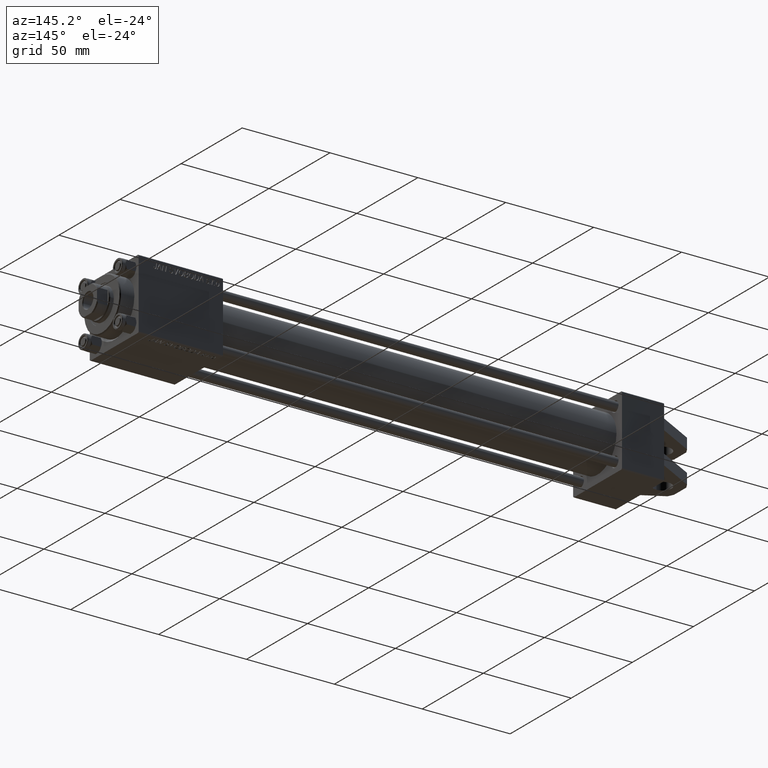
[diagram: clean part render]
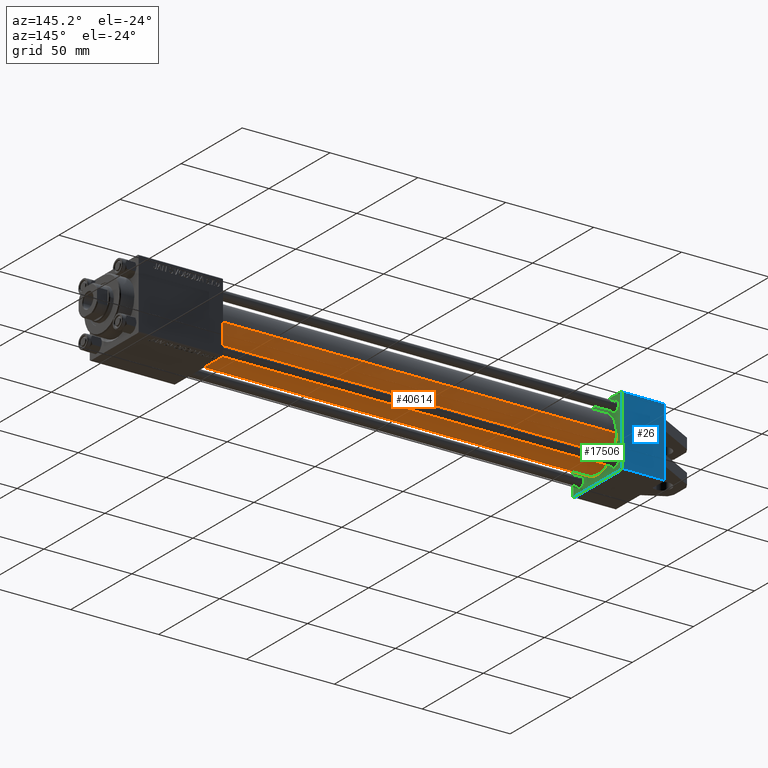
[diagram: same view with three faces highlighted in distinct colors, each labeled with its STEP entity id]
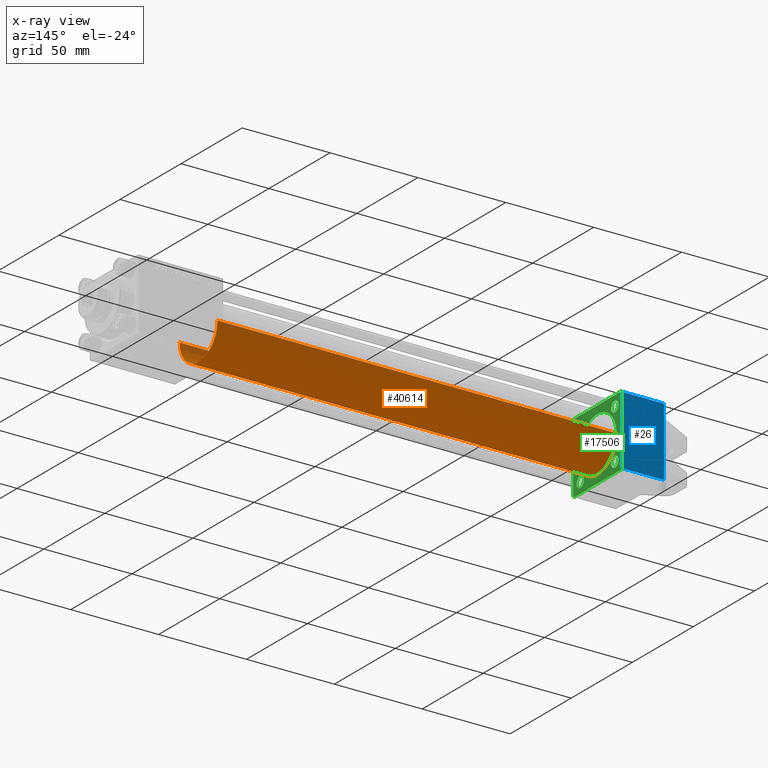
[diagram: x-ray of the same camera — body ghosted, the three highlighted faces saturated]
A machine part, auxiliary view with three faces highlighted in distinct colors.
The next image is the same camera in x-ray (body ghosted, the three faces saturated) — at least one of them is partly hidden behind the body in this view.
Their STEP definitions:

[orange] entity #40614 — the highlighted cylindrical surface (edge-blend (fillet) strip) has radius 15.5 mm, axis along (-1, -0, 0).
#1035 = CARTESIAN_POINT ( 'NONE',  ( 251.0000000000000000, -3.469446951953614189E-15, 15.50000000000000000 ) ) ;
#2471 = AXIS2_PLACEMENT_3D ( 'NONE', #43140, #35383, #30864 ) ;
#2531 = EDGE_CURVE ( 'NONE', #3615, #30677, #5265, .T. ) ;
#3615 = VERTEX_POINT ( 'NONE', #13253 ) ;
#4695 = AXIS2_PLACEMENT_3D ( 'NONE', #20181, #15919, #39510 ) ;
#5265 = LINE ( 'NONE', #1035, #26088 ) ;
#6732 = EDGE_LOOP ( 'NONE', ( #21698, #48359, #8610, #7876 ) ) ;
#6748 = CARTESIAN_POINT ( 'NONE',  ( 251.0000000000000000, -1.571244413275217026E-15, -15.50000000000000000 ) ) ;
#7876 = ORIENTED_EDGE ( 'NONE', *, *, #2531, .F. ) ;
#8141 = FACE_OUTER_BOUND ( 'NONE', #6732, .T. ) ;
#8610 = ORIENTED_EDGE ( 'NONE', *, *, #22761, .T. ) ;
#10566 = DIRECTION ( 'NONE',  ( -1.000000000000000000, -0.000000000000000000, -0.000000000000000000 ) ) ;
#13253 = CARTESIAN_POINT ( 'NONE',  ( 251.0000000000000000, -3.469446951953614189E-15, 15.50000000000000000 ) ) ;
#15919 = DIRECTION ( 'NONE',  ( -1.000000000000000000, -0.000000000000000000, -0.000000000000000000 ) ) ;
#17245 = VERTEX_POINT ( 'NONE', #6748 ) ;
#19935 = EDGE_CURVE ( 'NONE', #17245, #3615, #31292, .T. ) ;
#20181 = CARTESIAN_POINT ( 'NONE',  ( 251.0000000000000000, -3.469446951953614189E-15, 0.000000000000000000 ) ) ;
#21015 = DIRECTION ( 'NONE',  ( 1.000000000000000000, 0.000000000000000000, 0.000000000000000000 ) ) ;
#21698 = ORIENTED_EDGE ( 'NONE', *, *, #19935, .F. ) ;
#22591 = CARTESIAN_POINT ( 'NONE',  ( 251.0000000000000000, -1.571244413275217026E-15, -15.50000000000000000 ) ) ;
#22761 = EDGE_CURVE ( 'NONE', #49135, #30677, #36211, .T. ) ;
#26088 = VECTOR ( 'NONE', #46677, 1000.000000000000000 ) ;
#26361 = LINE ( 'NONE', #22591, #35698 ) ;
#29049 = DIRECTION ( 'NONE',  ( 0.000000000000000000, 0.000000000000000000, 1.000000000000000000 ) ) ;
#29778 = CARTESIAN_POINT ( 'NONE',  ( 23.99999999999999289, -3.469446951953614189E-15, 0.000000000000000000 ) ) ;
#30677 = VERTEX_POINT ( 'NONE', #38389 ) ;
#30864 = DIRECTION ( 'NONE',  ( 0.000000000000000000, 0.000000000000000000, -1.000000000000000000 ) ) ;
#31292 = CIRCLE ( 'NONE', #2471, 15.50000000000000000 ) ;
#35383 = DIRECTION ( 'NONE',  ( 1.000000000000000000, 0.000000000000000000, 0.000000000000000000 ) ) ;
#35698 = VECTOR ( 'NONE', #10566, 1000.000000000000000 ) ;
#36211 = CIRCLE ( 'NONE', #37030, 15.50000000000000000 ) ;
#36324 = EDGE_CURVE ( 'NONE', #17245, #49135, #26361, .T. ) ;
#37030 = AXIS2_PLACEMENT_3D ( 'NONE', #29778, #21015, #29049 ) ;
#38389 = CARTESIAN_POINT ( 'NONE',  ( 23.99999999999999289, -3.469446951953614189E-15, 15.50000000000000000 ) ) ;
#38769 = CYLINDRICAL_SURFACE ( 'NONE', #4695, 15.50000000000000000 ) ;
#39510 = DIRECTION ( 'NONE',  ( 0.000000000000000000, 0.000000000000000000, 1.000000000000000000 ) ) ;
#40614 = ADVANCED_FACE ( 'NONE', ( #8141 ), #38769, .T. ) ;
#43140 = CARTESIAN_POINT ( 'NONE',  ( 251.0000000000000000, -3.469446951953614189E-15, 0.000000000000000000 ) ) ;
#45581 = CARTESIAN_POINT ( 'NONE',  ( 23.99999999999999289, -1.571244413275217026E-15, -15.50000000000000000 ) ) ;
#46677 = DIRECTION ( 'NONE',  ( -1.000000000000000000, -0.000000000000000000, -0.000000000000000000 ) ) ;
#48359 = ORIENTED_EDGE ( 'NONE', *, *, #36324, .T. ) ;
#49135 = VERTEX_POINT ( 'NONE', #45581 ) ;

[blue] entity #26 — the highlighted planar face has unit normal (0, -1, -0).
#26 = ADVANCED_FACE ( 'NONE', ( #1017 ), #34361, .F. ) ;
#484 = LINE ( 'NONE', #31074, #48434 ) ;
#1017 = FACE_OUTER_BOUND ( 'NONE', #4135, .T. ) ;
#2263 = CARTESIAN_POINT ( 'NONE',  ( 24.00000000000000000, -19.49999999999999289, 19.99999999999998934 ) ) ;
#3327 = ORIENTED_EDGE ( 'NONE', *, *, #35187, .T. ) ;
#3594 = VECTOR ( 'NONE', #39533, 1000.000000000000000 ) ;
#3760 = DIRECTION ( 'NONE',  ( 0.000000000000000000, 2.602085213965210149E-16, -1.000000000000000000 ) ) ;
#4135 = EDGE_LOOP ( 'NONE', ( #3327, #46957, #36189, #30923, #49245, #25771, #46294, #37423 ) ) ;
#5000 = CARTESIAN_POINT ( 'NONE',  ( 0.000000000000000000, 6.000000000000000000, 19.99999999999999645 ) ) ;
#5658 = CARTESIAN_POINT ( 'NONE',  ( 0.000000000000000000, -6.000000000000000000, 19.99999999999998934 ) ) ;
#5775 = DIRECTION ( 'NONE',  ( -0.000000000000000000, -1.000000000000000000, -0.000000000000000000 ) ) ;
#6247 = DIRECTION ( 'NONE',  ( 1.000000000000000000, 0.000000000000000000, 0.000000000000000000 ) ) ;
#6880 = VERTEX_POINT ( 'NONE', #5658 ) ;
#8243 = CARTESIAN_POINT ( 'NONE',  ( 24.00000000000000000, 20.00000000000000000, 20.00000000000000000 ) ) ;
#8430 = VERTEX_POINT ( 'NONE', #40404 ) ;
#12256 = DIRECTION ( 'NONE',  ( 0.000000000000000000, 1.000000000000000000, 2.602085213965210149E-16 ) ) ;
#12447 = VERTEX_POINT ( 'NONE', #34679 ) ;
#13215 = VECTOR ( 'NONE', #22775, 1000.000000000000000 ) ;
#14660 = VERTEX_POINT ( 'NONE', #29392 ) ;
#15517 = CARTESIAN_POINT ( 'NONE',  ( 0.000000000000000000, 19.50000000000000000, 20.00000000000000000 ) ) ;
#17153 = EDGE_CURVE ( 'NONE', #12447, #21590, #36401, .T. ) ;
#17366 = CARTESIAN_POINT ( 'NONE',  ( 0.000000000000000000, -12.00000000000000000, 19.99999999999998934 ) ) ;
#19958 = VECTOR ( 'NONE', #6247, 1000.000000000000000 ) ;
#20002 = VECTOR ( 'NONE', #5775, 1000.000000000000000 ) ;
#20697 = CARTESIAN_POINT ( 'NONE',  ( 0.000000000000000000, 20.00000000000000000, 20.00000000000000000 ) ) ;
#21191 = CARTESIAN_POINT ( 'NONE',  ( 24.00000000000000000, 19.50000000000000000, 20.00000000000000000 ) ) ;
#21590 = VERTEX_POINT ( 'NONE', #47241 ) ;
#22775 = DIRECTION ( 'NONE',  ( 0.000000000000000000, -1.000000000000000000, -2.602085213965210149E-16 ) ) ;
#23626 = AXIS2_PLACEMENT_3D ( 'NONE', #8243, #3760, #12256 ) ;
#23746 = VERTEX_POINT ( 'NONE', #5000 ) ;
#23770 = DIRECTION ( 'NONE',  ( 0.000000000000000000, -1.000000000000000000, -2.602085213965210149E-16 ) ) ;
#24595 = CARTESIAN_POINT ( 'NONE',  ( 0.000000000000000000, 20.00000000000000000, 20.00000000000000000 ) ) ;
#24654 = LINE ( 'NONE', #17366, #49105 ) ;
#25771 = ORIENTED_EDGE ( 'NONE', *, *, #42736, .T. ) ;
#26805 = CARTESIAN_POINT ( 'NONE',  ( 0.000000000000000000, 20.00000000000000000, 20.00000000000000000 ) ) ;
#27361 = EDGE_CURVE ( 'NONE', #12447, #6880, #24654, .T. ) ;
#28592 = LINE ( 'NONE', #2263, #19958 ) ;
#28755 = VERTEX_POINT ( 'NONE', #31319 ) ;
#28928 = DIRECTION ( 'NONE',  ( -0.000000000000000000, 1.000000000000000000, -0.000000000000000000 ) ) ;
#29351 = LINE ( 'NONE', #26805, #13215 ) ;
#29392 = CARTESIAN_POINT ( 'NONE',  ( 0.000000000000000000, 12.00000000000000000, 19.99999999999999645 ) ) ;
#29813 = EDGE_CURVE ( 'NONE', #49611, #8430, #484, .T. ) ;
#30923 = ORIENTED_EDGE ( 'NONE', *, *, #27361, .F. ) ;
#31074 = CARTESIAN_POINT ( 'NONE',  ( 24.00000000000000000, 20.00000000000000000, 20.00000000000000000 ) ) ;
#31319 = CARTESIAN_POINT ( 'NONE',  ( 0.000000000000000000, 19.50000000000000000, 20.00000000000000000 ) ) ;
#31352 = DIRECTION ( 'NONE',  ( -1.000000000000000000, 0.000000000000000000, 0.000000000000000000 ) ) ;
#32389 = DIRECTION ( 'NONE',  ( 0.000000000000000000, -1.000000000000000000, -2.602085213965210149E-16 ) ) ;
#33864 = LINE ( 'NONE', #15517, #35246 ) ;
#34361 = PLANE ( 'NONE',  #23626 ) ;
#34679 = CARTESIAN_POINT ( 'NONE',  ( 0.000000000000000000, -12.00000000000000000, 19.99999999999999289 ) ) ;
#34683 = EDGE_CURVE ( 'NONE', #23746, #6880, #29351, .T. ) ;
#35187 = EDGE_CURVE ( 'NONE', #28755, #14660, #40287, .T. ) ;
#35246 = VECTOR ( 'NONE', #31352, 1000.000000000000000 ) ;
#36189 = ORIENTED_EDGE ( 'NONE', *, *, #34683, .T. ) ;
#36401 = LINE ( 'NONE', #24595, #46554 ) ;
#37423 = ORIENTED_EDGE ( 'NONE', *, *, #44704, .T. ) ;
#39533 = DIRECTION ( 'NONE',  ( 0.000000000000000000, -1.000000000000000000, -2.602085213965210149E-16 ) ) ;
#40148 = LINE ( 'NONE', #40387, #20002 ) ;
#40287 = LINE ( 'NONE', #20697, #3594 ) ;
#40387 = CARTESIAN_POINT ( 'NONE',  ( 0.000000000000000000, 12.00000000000000000, 19.99999999999998934 ) ) ;
#40404 = CARTESIAN_POINT ( 'NONE',  ( 24.00000000000000000, -19.49999999999999289, 19.99999999999998934 ) ) ;
#42736 = EDGE_CURVE ( 'NONE', #21590, #8430, #28592, .T. ) ;
#43741 = EDGE_CURVE ( 'NONE', #14660, #23746, #40148, .T. ) ;
#44704 = EDGE_CURVE ( 'NONE', #49611, #28755, #33864, .T. ) ;
#46294 = ORIENTED_EDGE ( 'NONE', *, *, #29813, .F. ) ;
#46554 = VECTOR ( 'NONE', #32389, 1000.000000000000000 ) ;
#46957 = ORIENTED_EDGE ( 'NONE', *, *, #43741, .T. ) ;
#47241 = CARTESIAN_POINT ( 'NONE',  ( 0.000000000000000000, -19.49999999999999289, 19.99999999999998934 ) ) ;
#48434 = VECTOR ( 'NONE', #23770, 1000.000000000000000 ) ;
#49105 = VECTOR ( 'NONE', #28928, 1000.000000000000000 ) ;
#49245 = ORIENTED_EDGE ( 'NONE', *, *, #17153, .T. ) ;
#49611 = VERTEX_POINT ( 'NONE', #21191 ) ;

[green] entity #17506 — the highlighted planar face has unit normal (-1, 0, -0).
#467 = ORIENTED_EDGE ( 'NONE', *, *, #31395, .T. ) ;
#483 = EDGE_CURVE ( 'NONE', #22000, #46213, #39693, .T. ) ;
#484 = LINE ( 'NONE', #31074, #48434 ) ;
#829 = ORIENTED_EDGE ( 'NONE', *, *, #39392, .T. ) ;
#2100 = VERTEX_POINT ( 'NONE', #16112 ) ;
#2825 = CARTESIAN_POINT ( 'NONE',  ( 24.00000000000000000, -14.14999999999999503, -17.15000000000000213 ) ) ;
#2859 = DIRECTION ( 'NONE',  ( 0.000000000000000000, 0.000000000000000000, 1.000000000000000000 ) ) ;
#3087 = CARTESIAN_POINT ( 'NONE',  ( 24.00000000000000000, 14.14999999999999858, 14.15000000000000036 ) ) ;
#3199 = FACE_BOUND ( 'NONE', #32418, .T. ) ;
#3511 = EDGE_CURVE ( 'NONE', #21528, #2100, #24420, .T. ) ;
#3841 = ORIENTED_EDGE ( 'NONE', *, *, #44250, .F. ) ;
#4323 = EDGE_CURVE ( 'NONE', #28096, #17785, #22779, .T. ) ;
#4855 = ORIENTED_EDGE ( 'NONE', *, *, #4960, .F. ) ;
#4960 = EDGE_CURVE ( 'NONE', #32857, #37855, #43030, .T. ) ;
#5140 = VECTOR ( 'NONE', #46726, 1000.000000000000114 ) ;
#5302 = DIRECTION ( 'NONE',  ( 0.000000000000000000, 0.000000000000000000, 1.000000000000000000 ) ) ;
#5553 = ORIENTED_EDGE ( 'NONE', *, *, #28811, .F. ) ;
#6134 = ORIENTED_EDGE ( 'NONE', *, *, #22761, .F. ) ;
#6213 = FACE_BOUND ( 'NONE', #10376, .T. ) ;
#6583 = ORIENTED_EDGE ( 'NONE', *, *, #483, .T. ) ;
#7116 = VERTEX_POINT ( 'NONE', #8594 ) ;
#7164 = ORIENTED_EDGE ( 'NONE', *, *, #28046, .T. ) ;
#7175 = DIRECTION ( 'NONE',  ( -1.000000000000000000, 0.000000000000000000, -0.000000000000000000 ) ) ;
#7991 = DIRECTION ( 'NONE',  ( -1.000000000000000000, -0.000000000000000000, -0.000000000000000000 ) ) ;
#8209 = LINE ( 'NONE', #23514, #16329 ) ;
#8430 = VERTEX_POINT ( 'NONE', #40404 ) ;
#8453 = DIRECTION ( 'NONE',  ( -1.000000000000000000, -0.000000000000000000, -0.000000000000000000 ) ) ;
#8594 = CARTESIAN_POINT ( 'NONE',  ( 24.00000000000000000, 19.50000000000000711, -20.00000000000000711 ) ) ;
#8629 = ORIENTED_EDGE ( 'NONE', *, *, #23520, .T. ) ;
#8867 = DIRECTION ( 'NONE',  ( 1.000000000000000000, 0.000000000000000000, 0.000000000000000000 ) ) ;
#9199 = VECTOR ( 'NONE', #18535, 1000.000000000000000 ) ;
#9378 = DIRECTION ( 'NONE',  ( 0.000000000000000000, 0.000000000000000000, 1.000000000000000000 ) ) ;
#9874 = DIRECTION ( 'NONE',  ( -1.000000000000000000, -0.000000000000000000, -0.000000000000000000 ) ) ;
#9938 = CARTESIAN_POINT ( 'NONE',  ( 24.00000000000000000, -20.00000000000000000, -19.49999999999999645 ) ) ;
#10376 = EDGE_LOOP ( 'NONE', ( #29464, #47553 ) ) ;
#10639 = VERTEX_POINT ( 'NONE', #30343 ) ;
#10821 = VECTOR ( 'NONE', #12905, 1000.000000000000000 ) ;
#11264 = VECTOR ( 'NONE', #48637, 999.9999999999998863 ) ;
#11810 = ORIENTED_EDGE ( 'NONE', *, *, #20464, .T. ) ;
#12001 = CIRCLE ( 'NONE', #16022, 15.50000000000000000 ) ;
#12062 = AXIS2_PLACEMENT_3D ( 'NONE', #47292, #9874, #9378 ) ;
#12515 = EDGE_CURVE ( 'NONE', #2100, #21528, #19949, .T. ) ;
#12905 = DIRECTION ( 'NONE',  ( 0.000000000000000000, 0.000000000000000000, -1.000000000000000000 ) ) ;
#13085 = CARTESIAN_POINT ( 'NONE',  ( 24.00000000000000000, -20.00000000000000355, 19.99999999999998934 ) ) ;
#13399 = EDGE_LOOP ( 'NONE', ( #5553, #30698, #4855, #45934, #33920, #34206, #49192, #467 ) ) ;
#13795 = CARTESIAN_POINT ( 'NONE',  ( 24.00000000000000000, -14.14999999999999503, 14.15000000000000391 ) ) ;
#14168 = CARTESIAN_POINT ( 'NONE',  ( 24.00000000000000000, 14.14999999999999858, -17.15000000000000568 ) ) ;
#14705 = PLANE ( 'NONE',  #15288 ) ;
#15042 = CIRCLE ( 'NONE', #26260, 2.999999999999997335 ) ;
#15288 = AXIS2_PLACEMENT_3D ( 'NONE', #30031, #7175, #22484 ) ;
#16022 = AXIS2_PLACEMENT_3D ( 'NONE', #47271, #8867, #23672 ) ;
#16112 = CARTESIAN_POINT ( 'NONE',  ( 24.00000000000000000, 14.14999999999999858, 11.15000000000001279 ) ) ;
#16329 = VECTOR ( 'NONE', #30566, 1000.000000000000000 ) ;
#17506 = ADVANCED_FACE ( 'NONE', ( #22233, #6213, #37569, #3199, #49097, #18469 ), #14705, .F. ) ;
#17785 = VERTEX_POINT ( 'NONE', #14168 ) ;
#17815 = DIRECTION ( 'NONE',  ( 0.000000000000000000, 0.000000000000000000, 1.000000000000000000 ) ) ;
#18469 = FACE_OUTER_BOUND ( 'NONE', #13399, .T. ) ;
#18535 = DIRECTION ( 'NONE',  ( 0.000000000000000000, 0.7071067811865401342, -0.7071067811865549002 ) ) ;
#19607 = AXIS2_PLACEMENT_3D ( 'NONE', #48085, #37282, #32778 ) ;
#19949 = CIRCLE ( 'NONE', #44826, 2.999999999999987121 ) ;
#20464 = EDGE_CURVE ( 'NONE', #34489, #10639, #41727, .T. ) ;
#20799 = CARTESIAN_POINT ( 'NONE',  ( 24.00000000000000000, -14.14999999999999503, 17.14999999999999503 ) ) ;
#20949 = EDGE_CURVE ( 'NONE', #32857, #49611, #48396, .T. ) ;
#21015 = DIRECTION ( 'NONE',  ( 1.000000000000000000, 0.000000000000000000, 0.000000000000000000 ) ) ;
#21191 = CARTESIAN_POINT ( 'NONE',  ( 24.00000000000000000, 19.50000000000000000, 20.00000000000000000 ) ) ;
#21277 = VERTEX_POINT ( 'NONE', #9938 ) ;
#21528 = VERTEX_POINT ( 'NONE', #42471 ) ;
#21821 = CARTESIAN_POINT ( 'NONE',  ( 24.00000000000000000, -14.14999999999999503, -14.15000000000000391 ) ) ;
#22000 = VERTEX_POINT ( 'NONE', #20799 ) ;
#22018 = EDGE_LOOP ( 'NONE', ( #7164, #45367 ) ) ;
#22137 = CARTESIAN_POINT ( 'NONE',  ( 24.00000000000000000, 14.14999999999999858, -11.14999999999999858 ) ) ;
#22233 = FACE_BOUND ( 'NONE', #35556, .T. ) ;
#22484 = DIRECTION ( 'NONE',  ( -0.000000000000000000, 0.000000000000000000, 1.000000000000000000 ) ) ;
#22761 = EDGE_CURVE ( 'NONE', #49135, #30677, #36211, .T. ) ;
#22779 = CIRCLE ( 'NONE', #29230, 3.000000000000004441 ) ;
#23514 = CARTESIAN_POINT ( 'NONE',  ( 24.00000000000000000, 20.00000000000000000, -20.00000000000000711 ) ) ;
#23520 = EDGE_CURVE ( 'NONE', #46213, #22000, #41028, .T. ) ;
#23672 = DIRECTION ( 'NONE',  ( 0.000000000000000000, 0.000000000000000000, 1.000000000000000000 ) ) ;
#23757 = DIRECTION ( 'NONE',  ( 0.000000000000000000, 0.000000000000000000, 1.000000000000000000 ) ) ;
#23770 = DIRECTION ( 'NONE',  ( 0.000000000000000000, -1.000000000000000000, -2.602085213965210149E-16 ) ) ;
#24419 = VERTEX_POINT ( 'NONE', #46904 ) ;
#24420 = CIRCLE ( 'NONE', #37257, 2.999999999999987121 ) ;
#24872 = LINE ( 'NONE', #13085, #35168 ) ;
#25665 = DIRECTION ( 'NONE',  ( -1.000000000000000000, -0.000000000000000000, -0.000000000000000000 ) ) ;
#26260 = AXIS2_PLACEMENT_3D ( 'NONE', #21821, #37153, #17815 ) ;
#28046 = EDGE_CURVE ( 'NONE', #17785, #28096, #31543, .T. ) ;
#28096 = VERTEX_POINT ( 'NONE', #22137 ) ;
#28649 = DIRECTION ( 'NONE',  ( 0.000000000000000000, 8.673617379884036705E-17, -1.000000000000000000 ) ) ;
#28811 = EDGE_CURVE ( 'NONE', #7116, #35391, #8209, .T. ) ;
#29049 = DIRECTION ( 'NONE',  ( 0.000000000000000000, 0.000000000000000000, 1.000000000000000000 ) ) ;
#29230 = AXIS2_PLACEMENT_3D ( 'NONE', #37222, #25665, #2859 ) ;
#29464 = ORIENTED_EDGE ( 'NONE', *, *, #12515, .T. ) ;
#29606 = CARTESIAN_POINT ( 'NONE',  ( 24.00000000000000000, -19.50000000000000711, -20.00000000000000000 ) ) ;
#29778 = CARTESIAN_POINT ( 'NONE',  ( 23.99999999999999289, -3.469446951953614189E-15, 0.000000000000000000 ) ) ;
#29813 = EDGE_CURVE ( 'NONE', #49611, #8430, #484, .T. ) ;
#30031 = CARTESIAN_POINT ( 'NONE',  ( 24.00000000000000000, 0.000000000000000000, 0.000000000000000000 ) ) ;
#30102 = LINE ( 'NONE', #29606, #9199 ) ;
#30343 = CARTESIAN_POINT ( 'NONE',  ( 24.00000000000000000, -14.14999999999999503, -11.15000000000000746 ) ) ;
#30566 = DIRECTION ( 'NONE',  ( 0.000000000000000000, -1.000000000000000000, 1.734723475976807094E-16 ) ) ;
#30677 = VERTEX_POINT ( 'NONE', #38389 ) ;
#30698 = ORIENTED_EDGE ( 'NONE', *, *, #37385, .T. ) ;
#31074 = CARTESIAN_POINT ( 'NONE',  ( 24.00000000000000000, 20.00000000000000000, 20.00000000000000000 ) ) ;
#31395 = EDGE_CURVE ( 'NONE', #21277, #35391, #30102, .T. ) ;
#31543 = CIRCLE ( 'NONE', #40343, 3.000000000000004441 ) ;
#32257 = EDGE_CURVE ( 'NONE', #8430, #24419, #34937, .T. ) ;
#32418 = EDGE_LOOP ( 'NONE', ( #11810, #829 ) ) ;
#32778 = DIRECTION ( 'NONE',  ( 0.000000000000000000, 0.000000000000000000, 1.000000000000000000 ) ) ;
#32857 = VERTEX_POINT ( 'NONE', #45064 ) ;
#33682 = DIRECTION ( 'NONE',  ( 0.000000000000000000, 0.000000000000000000, 1.000000000000000000 ) ) ;
#33920 = ORIENTED_EDGE ( 'NONE', *, *, #29813, .T. ) ;
#34206 = ORIENTED_EDGE ( 'NONE', *, *, #32257, .T. ) ;
#34489 = VERTEX_POINT ( 'NONE', #2825 ) ;
#34616 = DIRECTION ( 'NONE',  ( 0.000000000000000000, 0.000000000000000000, 1.000000000000000000 ) ) ;
#34937 = LINE ( 'NONE', #42700, #5140 ) ;
#35004 = CARTESIAN_POINT ( 'NONE',  ( 24.00000000000000000, -14.14999999999999503, 11.15000000000001457 ) ) ;
#35168 = VECTOR ( 'NONE', #28649, 1000.000000000000000 ) ;
#35391 = VERTEX_POINT ( 'NONE', #35735 ) ;
#35556 = EDGE_LOOP ( 'NONE', ( #3841, #6134 ) ) ;
#35735 = CARTESIAN_POINT ( 'NONE',  ( 24.00000000000000000, -19.50000000000000711, -20.00000000000000000 ) ) ;
#36211 = CIRCLE ( 'NONE', #37030, 15.50000000000000000 ) ;
#36836 = CARTESIAN_POINT ( 'NONE',  ( 24.00000000000000000, 20.00000000000000000, -19.50000000000002132 ) ) ;
#36901 = DIRECTION ( 'NONE',  ( -1.000000000000000000, -0.000000000000000000, -0.000000000000000000 ) ) ;
#37030 = AXIS2_PLACEMENT_3D ( 'NONE', #29778, #21015, #29049 ) ;
#37109 = CARTESIAN_POINT ( 'NONE',  ( 24.00000000000000000, 19.50000000000000000, 20.00000000000000000 ) ) ;
#37153 = DIRECTION ( 'NONE',  ( -1.000000000000000000, -0.000000000000000000, -0.000000000000000000 ) ) ;
#37222 = CARTESIAN_POINT ( 'NONE',  ( 24.00000000000000000, 14.14999999999999858, -14.15000000000000036 ) ) ;
#37257 = AXIS2_PLACEMENT_3D ( 'NONE', #37884, #7991, #34616 ) ;
#37282 = DIRECTION ( 'NONE',  ( -1.000000000000000000, -0.000000000000000000, -0.000000000000000000 ) ) ;
#37385 = EDGE_CURVE ( 'NONE', #7116, #37855, #49466, .T. ) ;
#37569 = FACE_BOUND ( 'NONE', #47842, .T. ) ;
#37855 = VERTEX_POINT ( 'NONE', #36836 ) ;
#37884 = CARTESIAN_POINT ( 'NONE',  ( 24.00000000000000000, 14.14999999999999858, 14.15000000000000036 ) ) ;
#38177 = CARTESIAN_POINT ( 'NONE',  ( 24.00000000000000000, 20.00000000000000000, -19.50000000000002132 ) ) ;
#38389 = CARTESIAN_POINT ( 'NONE',  ( 23.99999999999999289, -3.469446951953614189E-15, 15.50000000000000000 ) ) ;
#39014 = CARTESIAN_POINT ( 'NONE',  ( 24.00000000000000000, 20.00000000000000000, 20.00000000000000000 ) ) ;
#39392 = EDGE_CURVE ( 'NONE', #10639, #34489, #15042, .T. ) ;
#39693 = CIRCLE ( 'NONE', #19607, 2.999999999999990674 ) ;
#39824 = VECTOR ( 'NONE', #45212, 1000.000000000000000 ) ;
#40343 = AXIS2_PLACEMENT_3D ( 'NONE', #42841, #8453, #23757 ) ;
#40404 = CARTESIAN_POINT ( 'NONE',  ( 24.00000000000000000, -19.49999999999999289, 19.99999999999998934 ) ) ;
#41028 = CIRCLE ( 'NONE', #49010, 2.999999999999990674 ) ;
#41454 = EDGE_CURVE ( 'NONE', #24419, #21277, #24872, .T. ) ;
#41727 = CIRCLE ( 'NONE', #12062, 2.999999999999997335 ) ;
#42440 = DIRECTION ( 'NONE',  ( -1.000000000000000000, -0.000000000000000000, -0.000000000000000000 ) ) ;
#42471 = CARTESIAN_POINT ( 'NONE',  ( 24.00000000000000000, 14.14999999999999858, 17.14999999999999147 ) ) ;
#42700 = CARTESIAN_POINT ( 'NONE',  ( 24.00000000000000000, -20.00000000000000355, 19.49999999999998224 ) ) ;
#42841 = CARTESIAN_POINT ( 'NONE',  ( 24.00000000000000000, 14.14999999999999858, -14.15000000000000036 ) ) ;
#43030 = LINE ( 'NONE', #39014, #10821 ) ;
#44250 = EDGE_CURVE ( 'NONE', #30677, #49135, #12001, .T. ) ;
#44826 = AXIS2_PLACEMENT_3D ( 'NONE', #3087, #42440, #33682 ) ;
#45064 = CARTESIAN_POINT ( 'NONE',  ( 24.00000000000000000, 20.00000000000000000, 19.49999999999999289 ) ) ;
#45212 = DIRECTION ( 'NONE',  ( -0.000000000000000000, 0.7071067811865524577, 0.7071067811865426878 ) ) ;
#45367 = ORIENTED_EDGE ( 'NONE', *, *, #4323, .T. ) ;
#45581 = CARTESIAN_POINT ( 'NONE',  ( 23.99999999999999289, -1.571244413275217026E-15, -15.50000000000000000 ) ) ;
#45934 = ORIENTED_EDGE ( 'NONE', *, *, #20949, .T. ) ;
#46213 = VERTEX_POINT ( 'NONE', #35004 ) ;
#46726 = DIRECTION ( 'NONE',  ( -0.000000000000000000, -0.7071067811865500152, -0.7071067811865451302 ) ) ;
#46904 = CARTESIAN_POINT ( 'NONE',  ( 24.00000000000000000, -20.00000000000000355, 19.49999999999998224 ) ) ;
#47271 = CARTESIAN_POINT ( 'NONE',  ( 23.99999999999999289, -3.469446951953614189E-15, 0.000000000000000000 ) ) ;
#47292 = CARTESIAN_POINT ( 'NONE',  ( 24.00000000000000000, -14.14999999999999503, -14.15000000000000391 ) ) ;
#47553 = ORIENTED_EDGE ( 'NONE', *, *, #3511, .T. ) ;
#47842 = EDGE_LOOP ( 'NONE', ( #8629, #6583 ) ) ;
#48085 = CARTESIAN_POINT ( 'NONE',  ( 24.00000000000000000, -14.14999999999999503, 14.15000000000000391 ) ) ;
#48396 = LINE ( 'NONE', #37109, #11264 ) ;
#48434 = VECTOR ( 'NONE', #23770, 1000.000000000000000 ) ;
#48637 = DIRECTION ( 'NONE',  ( 0.000000000000000000, -0.7071067811865425767, 0.7071067811865525687 ) ) ;
#49010 = AXIS2_PLACEMENT_3D ( 'NONE', #13795, #36901, #5302 ) ;
#49097 = FACE_BOUND ( 'NONE', #22018, .T. ) ;
#49135 = VERTEX_POINT ( 'NONE', #45581 ) ;
#49192 = ORIENTED_EDGE ( 'NONE', *, *, #41454, .T. ) ;
#49466 = LINE ( 'NONE', #38177, #39824 ) ;
#49611 = VERTEX_POINT ( 'NONE', #21191 ) ;